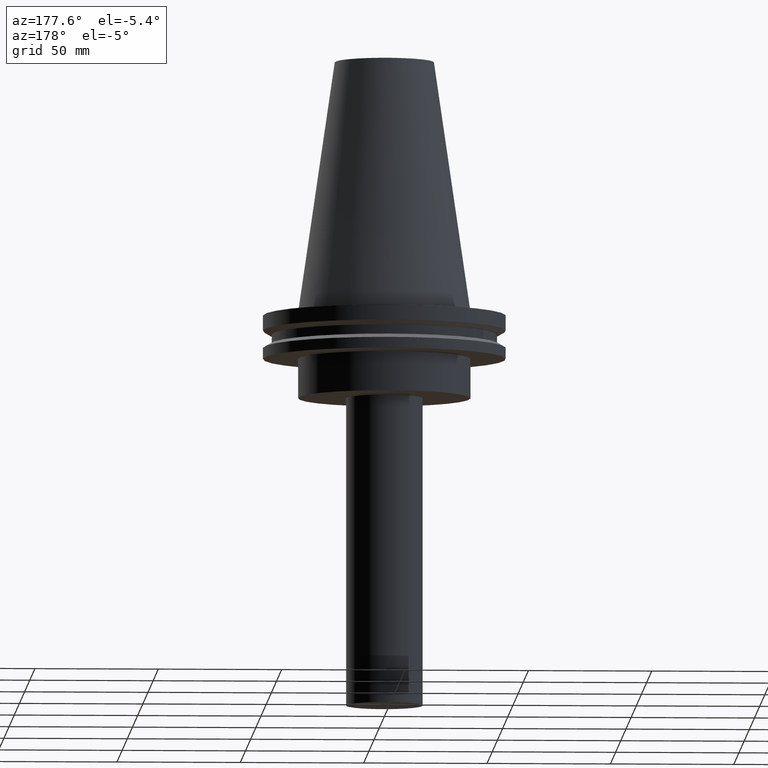
[diagram: clean part render]
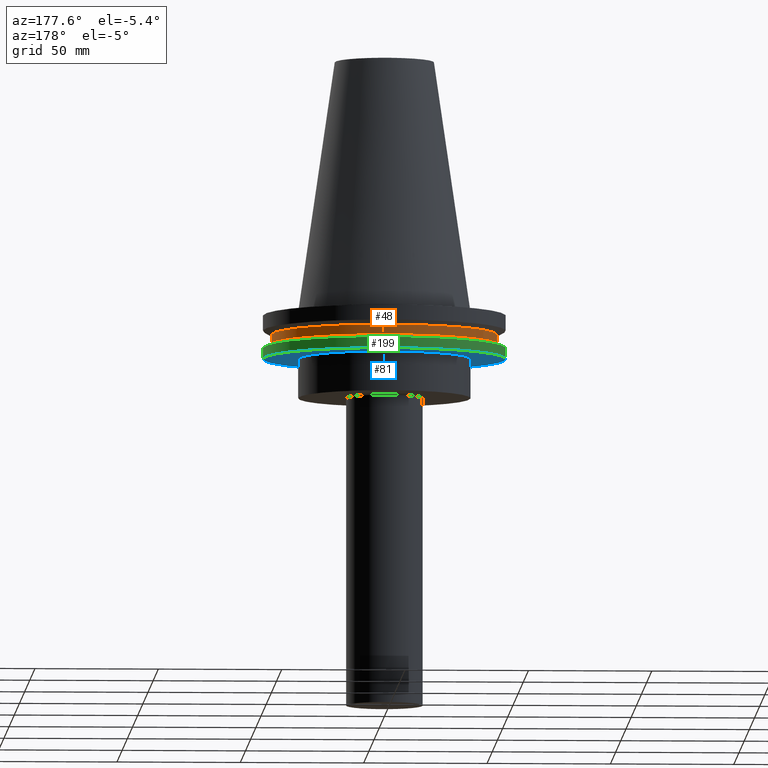
[diagram: same view with three faces highlighted in distinct colors, each labeled with its STEP entity id]
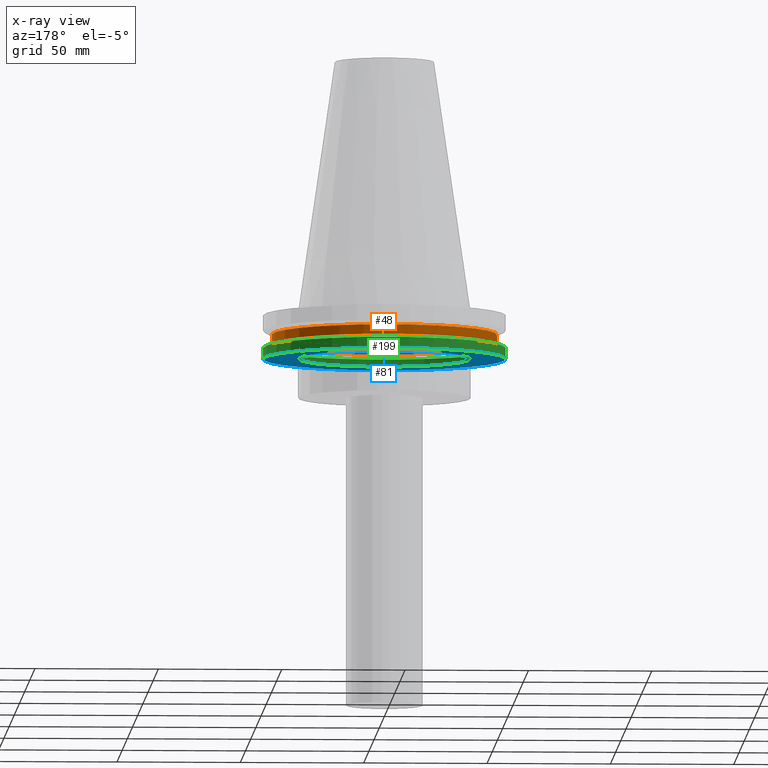
[diagram: x-ray of the same camera — body ghosted, the three highlighted faces saturated]
A machine part, auxiliary view with three faces highlighted in distinct colors.
The next image is the same camera in x-ray (body ghosted, the three faces saturated) — at least one of them is partly hidden behind the body in this view.
Their STEP definitions:

[orange] entity #48 — the highlighted cylindrical surface (bore or boss wall) has radius 45.645 mm, axis along (-0, -0, 1).
#11 = VERTEX_POINT ( 'NONE', #378 ) ;
#24 = EDGE_LOOP ( 'NONE', ( #394 ) ) ;
#48 = ADVANCED_FACE ( 'NONE', ( #180, #146 ), #152, .T. ) ;
#52 = CARTESIAN_POINT ( 'NONE',  ( 0.000000000000000000, 0.000000000000000000, -9.204999999999991189 ) ) ;
#54 = DIRECTION ( 'NONE',  ( -0.000000000000000000, -0.000000000000000000, 1.000000000000000000 ) ) ;
#110 = DIRECTION ( 'NONE',  ( -0.000000000000000000, -0.000000000000000000, 1.000000000000000000 ) ) ;
#117 = CIRCLE ( 'NONE', #338, 45.64500000000000313 ) ;
#118 = CARTESIAN_POINT ( 'NONE',  ( 0.000000000000000000, 0.000000000000000000, 101.5999999999999943 ) ) ;
#135 = AXIS2_PLACEMENT_3D ( 'NONE', #387, #110, #231 ) ;
#146 = FACE_OUTER_BOUND ( 'NONE', #24, .T. ) ;
#152 = CYLINDRICAL_SURFACE ( 'NONE', #344, 45.64500000000000313 ) ;
#180 = FACE_OUTER_BOUND ( 'NONE', #196, .T. ) ;
#188 = CARTESIAN_POINT ( 'NONE',  ( 45.64500000000000313, 0.000000000000000000, -13.05499999999999794 ) ) ;
#196 = EDGE_LOOP ( 'NONE', ( #386 ) ) ;
#217 = EDGE_CURVE ( 'NONE', #285, #285, #303, .T. ) ;
#231 = DIRECTION ( 'NONE',  ( 1.000000000000000000, 0.000000000000000000, 0.000000000000000000 ) ) ;
#272 = DIRECTION ( 'NONE',  ( 1.000000000000000000, 0.000000000000000000, 0.000000000000000000 ) ) ;
#285 = VERTEX_POINT ( 'NONE', #188 ) ;
#300 = DIRECTION ( 'NONE',  ( -0.000000000000000000, -0.000000000000000000, 1.000000000000000000 ) ) ;
#303 = CIRCLE ( 'NONE', #135, 45.64500000000000313 ) ;
#313 = DIRECTION ( 'NONE',  ( 1.000000000000000000, 0.000000000000000000, 0.000000000000000000 ) ) ;
#338 = AXIS2_PLACEMENT_3D ( 'NONE', #52, #300, #313 ) ;
#344 = AXIS2_PLACEMENT_3D ( 'NONE', #118, #54, #272 ) ;
#348 = EDGE_CURVE ( 'NONE', #11, #11, #117, .T. ) ;
#378 = CARTESIAN_POINT ( 'NONE',  ( 45.64500000000000313, 0.000000000000000000, -9.204999999999991189 ) ) ;
#386 = ORIENTED_EDGE ( 'NONE', *, *, #348, .F. ) ;
#387 = CARTESIAN_POINT ( 'NONE',  ( 0.000000000000000000, 0.000000000000000000, -13.05499999999999794 ) ) ;
#394 = ORIENTED_EDGE ( 'NONE', *, *, #217, .T. ) ;

[blue] entity #81 — the highlighted planar face has unit normal (0, -0, 1).
#2 = DIRECTION ( 'NONE',  ( 1.000000000000000000, 0.000000000000000000, 0.000000000000000000 ) ) ;
#8 = VERTEX_POINT ( 'NONE', #249 ) ;
#46 = DIRECTION ( 'NONE',  ( -0.000000000000000000, -0.000000000000000000, 1.000000000000000000 ) ) ;
#68 = DIRECTION ( 'NONE',  ( 0.000000000000000000, -0.000000000000000000, 1.000000000000000000 ) ) ;
#81 = ADVANCED_FACE ( 'NONE', ( #279, #318 ), #131, .F. ) ;
#84 = ORIENTED_EDGE ( 'NONE', *, *, #261, .T. ) ;
#88 = EDGE_LOOP ( 'NONE', ( #308 ) ) ;
#116 = AXIS2_PLACEMENT_3D ( 'NONE', #329, #46, #295 ) ;
#130 = DIRECTION ( 'NONE',  ( -0.000000000000000000, -0.000000000000000000, 1.000000000000000000 ) ) ;
#131 = PLANE ( 'NONE',  #198 ) ;
#186 = CARTESIAN_POINT ( 'NONE',  ( 49.21499999999998920, 0.000000000000000000, -19.04999999999999716 ) ) ;
#198 = AXIS2_PLACEMENT_3D ( 'NONE', #222, #68, #322 ) ;
#222 = CARTESIAN_POINT ( 'NONE',  ( 0.000000000000000000, 49.21499999999998920, -19.04999999999999716 ) ) ;
#235 = CIRCLE ( 'NONE', #265, 49.21499999999998920 ) ;
#246 = VERTEX_POINT ( 'NONE', #186 ) ;
#249 = CARTESIAN_POINT ( 'NONE',  ( 34.92499999999999716, 0.000000000000000000, -19.04999999999999716 ) ) ;
#261 = EDGE_CURVE ( 'NONE', #8, #8, #290, .T. ) ;
#265 = AXIS2_PLACEMENT_3D ( 'NONE', #349, #130, #2 ) ;
#279 = FACE_OUTER_BOUND ( 'NONE', #88, .T. ) ;
#290 = CIRCLE ( 'NONE', #116, 34.92499999999999716 ) ;
#295 = DIRECTION ( 'NONE',  ( 1.000000000000000000, 0.000000000000000000, 0.000000000000000000 ) ) ;
#308 = ORIENTED_EDGE ( 'NONE', *, *, #356, .F. ) ;
#318 = FACE_BOUND ( 'NONE', #363, .T. ) ;
#322 = DIRECTION ( 'NONE',  ( 1.000000000000000000, 0.000000000000000000, 0.000000000000000000 ) ) ;
#329 = CARTESIAN_POINT ( 'NONE',  ( 0.000000000000000000, 0.000000000000000000, -19.04999999999999716 ) ) ;
#349 = CARTESIAN_POINT ( 'NONE',  ( 0.000000000000000000, 0.000000000000000000, -19.04999999999999716 ) ) ;
#356 = EDGE_CURVE ( 'NONE', #246, #246, #235, .T. ) ;
#363 = EDGE_LOOP ( 'NONE', ( #84 ) ) ;

[green] entity #199 — the highlighted cylindrical surface (bore or boss wall) has radius 49.215 mm, axis along (-0, -0, 1).
#1 = EDGE_LOOP ( 'NONE', ( #234 ) ) ;
#2 = DIRECTION ( 'NONE',  ( 1.000000000000000000, 0.000000000000000000, 0.000000000000000000 ) ) ;
#7 = CIRCLE ( 'NONE', #151, 49.21499999999998920 ) ;
#14 = FACE_OUTER_BOUND ( 'NONE', #1, .T. ) ;
#28 = AXIS2_PLACEMENT_3D ( 'NONE', #258, #385, #197 ) ;
#53 = ORIENTED_EDGE ( 'NONE', *, *, #75, .F. ) ;
#75 = EDGE_CURVE ( 'NONE', #184, #184, #7, .T. ) ;
#107 = FACE_OUTER_BOUND ( 'NONE', #335, .T. ) ;
#130 = DIRECTION ( 'NONE',  ( -0.000000000000000000, -0.000000000000000000, 1.000000000000000000 ) ) ;
#136 = CYLINDRICAL_SURFACE ( 'NONE', #28, 49.21499999999998920 ) ;
#151 = AXIS2_PLACEMENT_3D ( 'NONE', #213, #286, #347 ) ;
#184 = VERTEX_POINT ( 'NONE', #277 ) ;
#186 = CARTESIAN_POINT ( 'NONE',  ( 49.21499999999998920, 0.000000000000000000, -19.04999999999999716 ) ) ;
#197 = DIRECTION ( 'NONE',  ( 1.000000000000000000, 0.000000000000000000, 0.000000000000000000 ) ) ;
#199 = ADVANCED_FACE ( 'NONE', ( #107, #14 ), #136, .T. ) ;
#213 = CARTESIAN_POINT ( 'NONE',  ( 0.000000000000000000, 0.000000000000000000, -14.65761014474876944 ) ) ;
#234 = ORIENTED_EDGE ( 'NONE', *, *, #356, .T. ) ;
#235 = CIRCLE ( 'NONE', #265, 49.21499999999998920 ) ;
#246 = VERTEX_POINT ( 'NONE', #186 ) ;
#258 = CARTESIAN_POINT ( 'NONE',  ( 0.000000000000000000, 0.000000000000000000, 101.5999999999999943 ) ) ;
#265 = AXIS2_PLACEMENT_3D ( 'NONE', #349, #130, #2 ) ;
#277 = CARTESIAN_POINT ( 'NONE',  ( 49.21499999999998920, 0.000000000000000000, -14.65761014474876944 ) ) ;
#286 = DIRECTION ( 'NONE',  ( -0.000000000000000000, -0.000000000000000000, 1.000000000000000000 ) ) ;
#335 = EDGE_LOOP ( 'NONE', ( #53 ) ) ;
#347 = DIRECTION ( 'NONE',  ( 1.000000000000000000, 0.000000000000000000, 0.000000000000000000 ) ) ;
#349 = CARTESIAN_POINT ( 'NONE',  ( 0.000000000000000000, 0.000000000000000000, -19.04999999999999716 ) ) ;
#356 = EDGE_CURVE ( 'NONE', #246, #246, #235, .T. ) ;
#385 = DIRECTION ( 'NONE',  ( -0.000000000000000000, -0.000000000000000000, 1.000000000000000000 ) ) ;